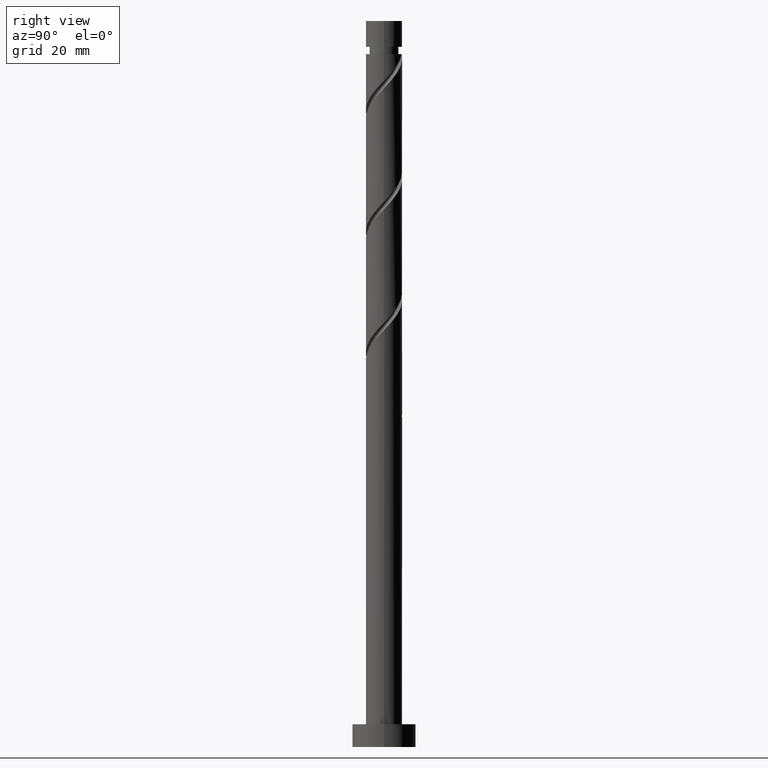
[diagram: clean part render]
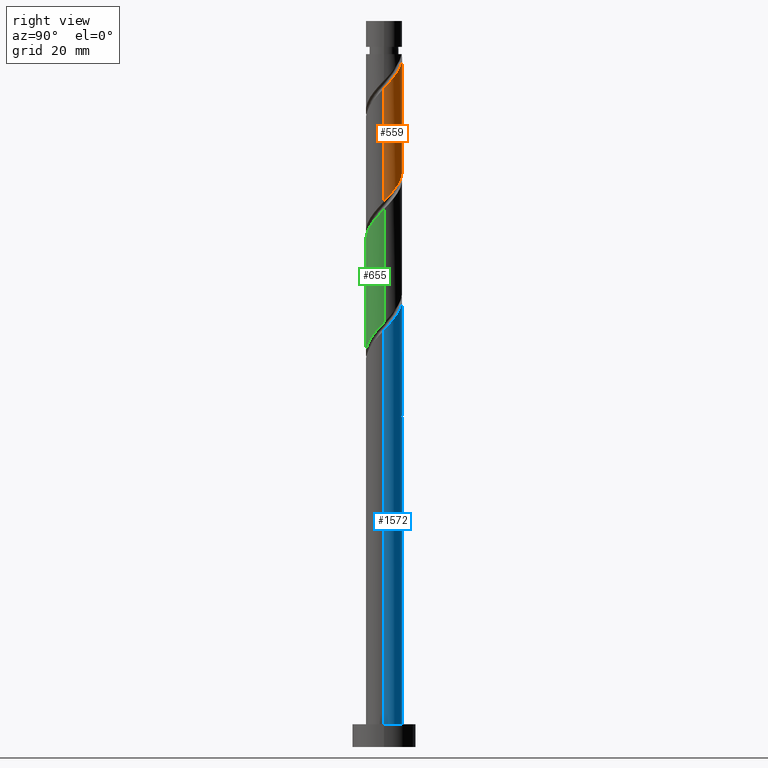
[diagram: same view with three faces highlighted in distinct colors, each labeled with its STEP entity id]
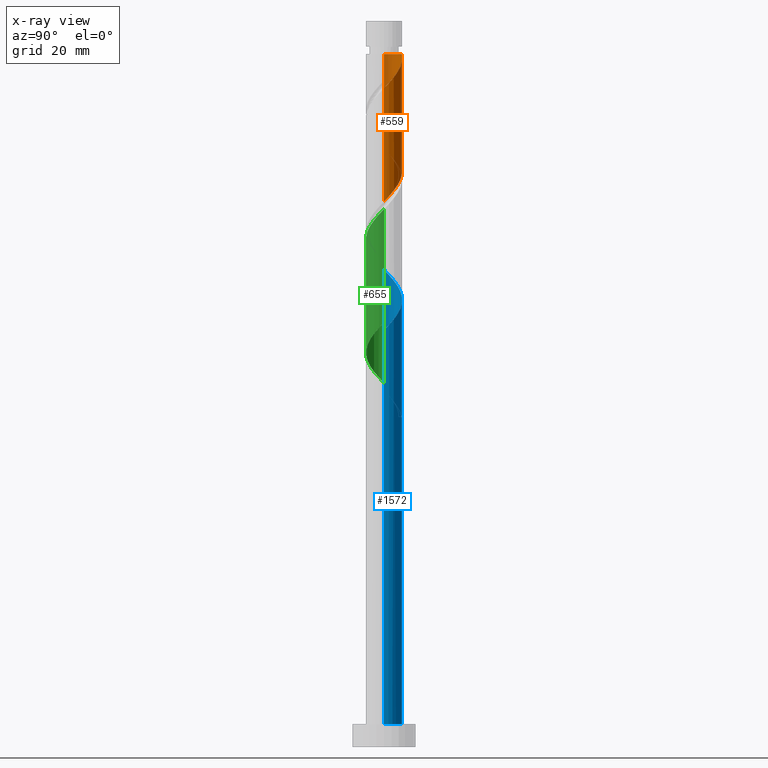
[diagram: x-ray of the same camera — body ghosted, the three highlighted faces saturated]
A machine part, right view with three faces highlighted in distinct colors.
The next image is the same camera in x-ray (body ghosted, the three faces saturated) — at least one of them is partly hidden behind the body in this view.
Their STEP definitions:

[orange] entity #559 — the highlighted cylindrical surface (edge-blend (fillet) strip) has radius 4 mm, axis along (-0, -0, -1).
#6 = VERTEX_POINT ( 'NONE', #1461 ) ;
#10 = CARTESIAN_POINT ( 'NONE',  ( 1.868138386609202950, 3.536956172823909839, 124.8291720253184280 ) ) ;
#25 = CARTESIAN_POINT ( 'NONE',  ( 3.201206812320807948, 2.466379960577145702, 123.0109902071366434 ) ) ;
#27 = ORIENTED_EDGE ( 'NONE', *, *, #380, .F. ) ;
#166 = CARTESIAN_POINT ( 'NONE',  ( 3.999999999999999112, -4.217823438386014002E-15, 120.2240810500738490 ) ) ;
#188 = AXIS2_PLACEMENT_3D ( 'NONE', #1106, #456, #1248 ) ;
#193 = CARTESIAN_POINT ( 'NONE',  ( 3.999999999999999112, -4.217823438386014002E-15, 120.2240810500738490 ) ) ;
#217 = LINE ( 'NONE', #853, #1034 ) ;
#244 = EDGE_LOOP ( 'NONE', ( #557, #1117, #1029, #27, #1439 ) ) ;
#275 = CARTESIAN_POINT ( 'NONE',  ( -4.000000000000000000, -2.183695822710489317E-15, 133.5574143834072345 ) ) ;
#327 = CARTESIAN_POINT ( 'NONE',  ( 3.766818871216639941, 1.345762085751509352, 146.6473538435003263 ) ) ;
#342 = CARTESIAN_POINT ( 'NONE',  ( -0.7959899496852961276, 3.920000000000009255, 152.7079599041063318 ) ) ;
#359 = CARTESIAN_POINT ( 'NONE',  ( -0.7959899496852961276, 3.920000000000009255, 152.7079599041063318 ) ) ;
#379 = CARTESIAN_POINT ( 'NONE',  ( -2.441275768804707536, 3.168623142730447650, 129.6776568738032722 ) ) ;
#380 = EDGE_CURVE ( 'NONE', #1197, #868, #217, .T. ) ;
#382 = DIRECTION ( 'NONE',  ( -1.000000000000000000, 0.000000000000000000, 0.000000000000000000 ) ) ;
#389 = CARTESIAN_POINT ( 'NONE',  ( 0.7959899496852969047, 3.919999999999999041, 126.0412932374396462 ) ) ;
#398 = CARTESIAN_POINT ( 'NONE',  ( -0.3406448590276052735, 3.985468740313748537, 127.2534144495608643 ) ) ;
#408 = CARTESIAN_POINT ( 'NONE',  ( 3.766394975944543422, 1.464590062224026212, 121.7988689950154253 ) ) ;
#411 = EDGE_CURVE ( 'NONE', #6, #429, #1443, .T. ) ;
#413 = DIRECTION ( 'NONE',  ( -0.000000000000000000, -0.000000000000000000, -1.000000000000000000 ) ) ;
#429 = VERTEX_POINT ( 'NONE', #193 ) ;
#443 =( BOUNDED_CURVE ( )  B_SPLINE_CURVE ( 2, ( #275, #508, #1280, #1053, #1416, #1013, #768, #1549, #379, #886, #1570, #1297, #398, #1163, #389, #903, #10, #1427, #778, #25, #914, #408, #791, #1311, #166 ),
 .UNSPECIFIED., .F., .T. ) 
 B_SPLINE_CURVE_WITH_KNOTS ( ( 3, 2, 2, 2, 2, 2, 2, 2, 2, 2, 2, 2, 3 ),
 ( 0.4295252162417512731, 0.4318181818181818232, 0.4431818181818181768, 0.4545454545454545303, 0.4659090909090908839, 0.4772727272727272929, 0.4886363636363636465, 0.5000000000000000000, 0.5113636363636363535, 0.5227272727272727071, 0.5340909090909090606, 0.5454545454545454142, 0.5545252162417513286 ),
 .UNSPECIFIED. ) 
 CURVE ( )  GEOMETRIC_REPRESENTATION_ITEM ( )  RATIONAL_B_SPLINE_CURVE ( ( 0.9061101570135550176, 0.9072237824201372369, 0.9090909090909147228, 0.8998376744372170721, 0.9090909090909147228, 0.8998376744372170721, 0.9090909090909147228, 0.8998376744372170721, 0.9090909090909147228, 0.8998376744372170721, 0.9090909090909147228, 0.8998376744372170721, 0.9090909090909147228, 0.8998376744372170721, 0.9090909090909147228, 0.8998376744372170721, 0.9090909090909147228, 0.8998376744372170721, 0.9090909090909147228, 0.8998376744372170721, 0.9090909090909147228, 0.8998376744372170721, 0.9090909090909147228, 0.9017048011079945580, 0.9061101570135550176 ) ) 
 REPRESENTATION_ITEM ( '' )  );
#456 = DIRECTION ( 'NONE',  ( -0.000000000000000000, -0.000000000000000000, -1.000000000000000000 ) ) ;
#460 = CARTESIAN_POINT ( 'NONE',  ( -4.000000000000000000, -2.183695822710489317E-15, 133.5574143834072345 ) ) ;
#470 = AXIS2_PLACEMENT_3D ( 'NONE', #1534, #1647, #382 ) ;
#475 = CARTESIAN_POINT ( 'NONE',  ( 2.896854998579490470, 2.817620677520441763, 148.4655356616821109 ) ) ;
#508 = CARTESIAN_POINT ( 'NONE',  ( -4.000000000000000000, 0.1151021060952860386, 133.4353163786889809 ) ) ;
#510 = CARTESIAN_POINT ( 'NONE',  ( 3.235091246491831107, 2.352484777181775399, 147.8594750556215160 ) ) ;
#523 = CIRCLE ( 'NONE', #470, 3.999999999999994227 ) ;
#557 = ORIENTED_EDGE ( 'NONE', *, *, #1466, .F. ) ;
#559 = ADVANCED_FACE ( 'NONE', ( #1641 ), #1097, .T. ) ;
#572 = CARTESIAN_POINT ( 'NONE',  ( 4.000000000000007105, 0.1151021060952970576, 145.3139367628570255 ) ) ;
#616 = VERTEX_POINT ( 'NONE', #342 ) ;
#695 = CARTESIAN_POINT ( 'NONE',  ( 4.000000000000007105, 2.049084436379005528E-15, 145.1918387581388004 ) ) ;
#739 = CARTESIAN_POINT ( 'NONE',  ( 1.449682647155075221, 3.728058505782534393, 150.2837174798639239 ) ) ;
#753 = CARTESIAN_POINT ( 'NONE',  ( 2.441275768804712420, 3.168623142730452980, 149.0715962677427058 ) ) ;
#756 = VECTOR ( 'NONE', #413, 1000.000000000000000 ) ;
#768 = CARTESIAN_POINT ( 'NONE',  ( -3.235091246491822226, 2.352484777181772735, 130.8897780859244619 ) ) ;
#778 = CARTESIAN_POINT ( 'NONE',  ( 2.788941361696811061, 2.867369191613931001, 123.6170508131972383 ) ) ;
#781 = CARTESIAN_POINT ( 'NONE',  ( -3.999999999999994227, 0.000000000000000000, 152.7079599041063318 ) ) ;
#791 = CARTESIAN_POINT ( 'NONE',  ( 3.896423597087599777, 0.9043689247530142250, 121.1928083889547736 ) ) ;
#853 = CARTESIAN_POINT ( 'NONE',  ( -4.000000000000000000, 0.000000000000000000, 160.0000000000000000 ) ) ;
#868 = VERTEX_POINT ( 'NONE', #460 ) ;
#886 = CARTESIAN_POINT ( 'NONE',  ( -1.985696539029934815, 3.519625607940454870, 129.0715962677426774 ) ) ;
#903 = CARTESIAN_POINT ( 'NONE',  ( 1.359600862145591949, 3.805553922997102489, 125.4352326313790229 ) ) ;
#905 =( BOUNDED_CURVE ( )  B_SPLINE_CURVE ( 2, ( #695, #572, #1096, #1615, #327, #1261, #510, #475, #753, #1377, #739, #1268, #1419, #1289, #359 ),
 .UNSPECIFIED., .F., .T. ) 
 B_SPLINE_CURVE_WITH_KNOTS ( ( 3, 2, 2, 2, 2, 2, 2, 3 ),
 ( 0.6795252162417515507, 0.6818181818181818787, 0.6931818181818180102, 0.7045454545454544748, 0.7159090909090906063, 0.7272727272727270709, 0.7386363636363633134, 0.7499999999999996669 ),
 .UNSPECIFIED. ) 
 CURVE ( )  GEOMETRIC_REPRESENTATION_ITEM ( )  RATIONAL_B_SPLINE_CURVE ( ( 0.9061101570135619010, 0.9072237824201440093, 0.9090909090909213841, 0.8998376744372237335, 0.9090909090909213841, 0.8998376744372237335, 0.9090909090909213841, 0.8998376744372237335, 0.9090909090909213841, 0.8998376744372237335, 0.9090909090909213841, 0.8998376744372237335, 0.9090909090909213841, 0.8998376744372239555, 0.9090909090909211621 ) ) 
 REPRESENTATION_ITEM ( '' )  );
#914 = CARTESIAN_POINT ( 'NONE',  ( 3.483800894132674575, 1.965485011400587734, 122.4049296010760060 ) ) ;
#1013 = CARTESIAN_POINT ( 'NONE',  ( -3.573327494404164195, 1.887348876843107259, 131.4958386919851137 ) ) ;
#1029 = ORIENTED_EDGE ( 'NONE', *, *, #1332, .F. ) ;
#1034 = VECTOR ( 'NONE', #1272, 1000.000000000000000 ) ;
#1053 = CARTESIAN_POINT ( 'NONE',  ( -3.960310248029101032, 0.8041752946599101115, 132.7079599041063318 ) ) ;
#1096 = CARTESIAN_POINT ( 'NONE',  ( 3.993381233129886798, 0.2300137536889525769, 145.4352326313790797 ) ) ;
#1097 = CYLINDRICAL_SURFACE ( 'NONE', #188, 4.000000000000000000 ) ;
#1106 = CARTESIAN_POINT ( 'NONE',  ( 0.000000000000000000, 0.000000000000000000, 160.0000000000000000 ) ) ;
#1117 = ORIENTED_EDGE ( 'NONE', *, *, #411, .T. ) ;
#1163 = CARTESIAN_POINT ( 'NONE',  ( 0.2323790372250005565, 4.034446077002895592, 126.6473538435002268 ) ) ;
#1185 = CARTESIAN_POINT ( 'NONE',  ( 4.000000000000000000, 4.898587196589412829E-16, 160.0000000000000000 ) ) ;
#1197 = VERTEX_POINT ( 'NONE', #781 ) ;
#1248 = DIRECTION ( 'NONE',  ( -1.000000000000000000, 0.000000000000000000, 0.000000000000000000 ) ) ;
#1261 = CARTESIAN_POINT ( 'NONE',  ( 3.573327494404172189, 1.887348876843108814, 147.2534144495608643 ) ) ;
#1268 = CARTESIAN_POINT ( 'NONE',  ( 0.9136687552802141843, 3.936491403624607255, 150.8897780859245188 ) ) ;
#1272 = DIRECTION ( 'NONE',  ( -0.000000000000000000, -0.000000000000000000, -1.000000000000000000 ) ) ;
#1280 = CARTESIAN_POINT ( 'NONE',  ( -3.993381233129878805, 0.2300137536889537704, 133.3140205101669551 ) ) ;
#1289 = CARTESIAN_POINT ( 'NONE',  ( -0.2323790372249828207, 4.034446077002901809, 152.1018992980457085 ) ) ;
#1297 = CARTESIAN_POINT ( 'NONE',  ( -0.9136687552802114087, 3.936491403624601038, 127.8594750556214734 ) ) ;
#1311 = CARTESIAN_POINT ( 'NONE',  ( 4.000000000000000000, 0.4581157095404882473, 120.7100410030451343 ) ) ;
#1332 = EDGE_CURVE ( 'NONE', #868, #429, #443, .T. ) ;
#1377 = CARTESIAN_POINT ( 'NONE',  ( 1.985696539029937258, 3.519625607940459755, 149.6776568738033006 ) ) ;
#1416 = CARTESIAN_POINT ( 'NONE',  ( -3.766818871216632392, 1.345762085751508463, 132.1018992980456801 ) ) ;
#1419 = CARTESIAN_POINT ( 'NONE',  ( 0.3406448590276069388, 3.985468740313756086, 151.4958386919851421 ) ) ;
#1427 = CARTESIAN_POINT ( 'NONE',  ( 2.376675911072815062, 3.268358422650717188, 124.2231114192578190 ) ) ;
#1439 = ORIENTED_EDGE ( 'NONE', *, *, #1515, .T. ) ;
#1443 = LINE ( 'NONE', #1185, #756 ) ;
#1461 = CARTESIAN_POINT ( 'NONE',  ( 4.000000000000007105, 2.049084436379005528E-15, 145.1918387581388004 ) ) ;
#1466 = EDGE_CURVE ( 'NONE', #6, #616, #905, .T. ) ;
#1515 = EDGE_CURVE ( 'NONE', #1197, #616, #523, .T. ) ;
#1534 = CARTESIAN_POINT ( 'NONE',  ( 0.000000000000000000, 0.000000000000000000, 152.7079599041063318 ) ) ;
#1549 = CARTESIAN_POINT ( 'NONE',  ( -2.896854998579482476, 2.817620677520439987, 130.2837174798638955 ) ) ;
#1570 = CARTESIAN_POINT ( 'NONE',  ( -1.449682647155072779, 3.728058505782527732, 128.4655356616820541 ) ) ;
#1615 = CARTESIAN_POINT ( 'NONE',  ( 3.960310248029109470, 0.8041752946599098895, 146.0412932374396462 ) ) ;
#1641 = FACE_OUTER_BOUND ( 'NONE', #244, .T. ) ;
#1647 = DIRECTION ( 'NONE',  ( -0.000000000000000000, -0.000000000000000000, -1.000000000000000000 ) ) ;

[blue] entity #1572 — the highlighted cylindrical surface (edge-blend (fillet) strip) has radius 4 mm, axis along (-0, -0, -1).
#22 = CARTESIAN_POINT ( 'NONE',  ( -3.483800894132680792, 1.965485011400591731, 76.34432354046998626 ) ) ;
#48 = CARTESIAN_POINT ( 'NONE',  ( -3.766394975944548751, 1.464590062224031763, 103.6170508131972383 ) ) ;
#56 = CARTESIAN_POINT ( 'NONE',  ( -4.000000000000000000, 0.000000000000000000, 160.0000000000000000 ) ) ;
#57 = CARTESIAN_POINT ( 'NONE',  ( -3.960310248029101032, 0.8041752946599101115, 79.37462657077296058 ) ) ;
#60 = CARTESIAN_POINT ( 'NONE',  ( 0.000000000000000000, 0.000000000000000000, 72.70795990410631759 ) ) ;
#66 = CARTESIAN_POINT ( 'NONE',  ( 4.000000000000000000, 4.898587196589412829E-16, 5.000000000000000000 ) ) ;
#68 = CARTESIAN_POINT ( 'NONE',  ( -1.449682647155072779, 3.728058505782527732, 75.13220232834875389 ) ) ;
#96 = CARTESIAN_POINT ( 'NONE',  ( 4.000000000000007105, 2.049084436379005528E-15, 91.85850542480544334 ) ) ;
#104 = EDGE_CURVE ( 'NONE', #637, #936, #1499, .T. ) ;
#105 = CARTESIAN_POINT ( 'NONE',  ( 0.000000000000000000, 0.000000000000000000, 5.000000000000000000 ) ) ;
#159 = AXIS2_PLACEMENT_3D ( 'NONE', #994, #257, #1016 ) ;
#202 = ORIENTED_EDGE ( 'NONE', *, *, #704, .T. ) ;
#212 = EDGE_CURVE ( 'NONE', #637, #736, #671, .T. ) ;
#221 = CARTESIAN_POINT ( 'NONE',  ( -4.000000000000000000, 0.000000000000000000, 5.000000000000000000 ) ) ;
#223 = LINE ( 'NONE', #1121, #1359 ) ;
#224 = CARTESIAN_POINT ( 'NONE',  ( -4.000000000000007105, -2.228566284820962220E-15, 78.52517209147210053 ) ) ;
#233 = CARTESIAN_POINT ( 'NONE',  ( -4.000000000000007105, -2.228566284820962220E-15, 78.52517209147210053 ) ) ;
#257 = DIRECTION ( 'NONE',  ( -0.000000000000000000, -0.000000000000000000, -1.000000000000000000 ) ) ;
#270 = CARTESIAN_POINT ( 'NONE',  ( -1.359600862145592837, 3.805553922997109595, 99.98068717683358386 ) ) ;
#284 = ORIENTED_EDGE ( 'NONE', *, *, #212, .F. ) ;
#329 = CARTESIAN_POINT ( 'NONE',  ( 3.766818871216639941, 1.345762085751509352, 93.31402051016695509 ) ) ;
#337 =( BOUNDED_CURVE ( )  B_SPLINE_CURVE ( 2, ( #1600, #1206, #1318, #57, #1337, #1087, #1069, #1593, #1486, #424, #68, #929, #440, #945, #1229 ),
 .UNSPECIFIED., .F., .T. ) 
 B_SPLINE_CURVE_WITH_KNOTS ( ( 3, 2, 2, 2, 2, 2, 2, 3 ),
 ( 0.9295252162417513286, 0.9318181818181817677, 0.9431818181818182323, 0.9545454545454545858, 0.9659090909090909394, 0.9772727272727272929, 0.9886363636363636465, 1.000000000000000000 ),
 .UNSPECIFIED. ) 
 CURVE ( )  GEOMETRIC_REPRESENTATION_ITEM ( )  RATIONAL_B_SPLINE_CURVE ( ( 0.9061101570135550176, 0.9072237824201372369, 0.9090909090909147228, 0.8998376744372170721, 0.9090909090909147228, 0.8998376744372170721, 0.9090909090909147228, 0.8998376744372170721, 0.9090909090909147228, 0.8998376744372170721, 0.9090909090909147228, 0.8998376744372170721, 0.9090909090909147228, 0.8998376744372170721, 0.9090909090909147228 ) ) 
 REPRESENTATION_ITEM ( '' )  );
#388 = AXIS2_PLACEMENT_3D ( 'NONE', #105, #1382, #1545 ) ;
#392 = ORIENTED_EDGE ( 'NONE', *, *, #1207, .F. ) ;
#417 = AXIS2_PLACEMENT_3D ( 'NONE', #60, #788, #1309 ) ;
#419 = VECTOR ( 'NONE', #1356, 1000.000000000000000 ) ;
#424 = CARTESIAN_POINT ( 'NONE',  ( -1.985696539029934815, 3.519625607940454870, 75.73826293440936297 ) ) ;
#438 = CARTESIAN_POINT ( 'NONE',  ( -4.000000000000007105, -2.228566284820962220E-15, 105.1918387581387719 ) ) ;
#440 = CARTESIAN_POINT ( 'NONE',  ( -0.3406448590276052735, 3.985468740313748537, 73.92008111622752153 ) ) ;
#462 = DIRECTION ( 'NONE',  ( -0.000000000000000000, -0.000000000000000000, -1.000000000000000000 ) ) ;
#485 = FACE_OUTER_BOUND ( 'NONE', #770, .T. ) ;
#538 = LINE ( 'NONE', #56, #1233 ) ;
#582 = EDGE_CURVE ( 'NONE', #707, #1173, #223, .T. ) ;
#594 = CARTESIAN_POINT ( 'NONE',  ( 3.235091246491831107, 2.352484777181775399, 94.52614172228815903 ) ) ;
#606 = CARTESIAN_POINT ( 'NONE',  ( -4.000000000000007105, -2.228566284820962220E-15, 105.1918387581387719 ) ) ;
#612 = CARTESIAN_POINT ( 'NONE',  ( 2.441275768804712420, 3.168623142730452980, 95.73826293440937718 ) ) ;
#637 = VERTEX_POINT ( 'NONE', #832 ) ;
#671 =( BOUNDED_CURVE ( )  B_SPLINE_CURVE ( 2, ( #1454, #1192, #814, #900, #1434, #774, #22, #1050, #1240, #1348, #224 ),
 .UNSPECIFIED., .F., .T. ) 
 B_SPLINE_CURVE_WITH_KNOTS ( ( 3, 2, 2, 2, 2, 3 ),
 ( 0.000000000000000000, 0.01136363636363635354, 0.02272727272727270709, 0.03409090909090906063, 0.04545454545454541417, 0.05452521624175133558 ),
 .UNSPECIFIED. ) 
 CURVE ( )  GEOMETRIC_REPRESENTATION_ITEM ( )  RATIONAL_B_SPLINE_CURVE ( ( 0.9090909090909213841, 0.8998376744372237335, 0.9090909090909213841, 0.8998376744372237335, 0.9090909090909213841, 0.8998376744372237335, 0.9090909090909213841, 0.8998376744372237335, 0.9090909090909213841, 0.9017048011080011083, 0.9061101570135616790 ) ) 
 REPRESENTATION_ITEM ( '' )  );
#675 = CARTESIAN_POINT ( 'NONE',  ( -3.201206812320814166, 2.466379960577149699, 102.4049296010760344 ) ) ;
#704 = EDGE_CURVE ( 'NONE', #1173, #931, #1259, .T. ) ;
#707 = VERTEX_POINT ( 'NONE', #1009 ) ;
#729 = CYLINDRICAL_SURFACE ( 'NONE', #159, 4.000000000000000000 ) ;
#733 = CARTESIAN_POINT ( 'NONE',  ( 3.573327494404172189, 1.887348876843108814, 93.92008111622754996 ) ) ;
#736 = VERTEX_POINT ( 'NONE', #233 ) ;
#770 = EDGE_LOOP ( 'NONE', ( #898, #1422, #202, #392, #284, #1238, #940, #1306 ) ) ;
#774 = CARTESIAN_POINT ( 'NONE',  ( -3.201206812320814166, 2.466379960577149699, 75.73826293440936297 ) ) ;
#788 = DIRECTION ( 'NONE',  ( 0.000000000000000000, -0.000000000000000000, -1.000000000000000000 ) ) ;
#802 = CARTESIAN_POINT ( 'NONE',  ( -2.788941361696815946, 2.867369191613937218, 101.7988689950154111 ) ) ;
#814 = CARTESIAN_POINT ( 'NONE',  ( -1.868138386609206059, 3.536956172823916056, 73.92008111622753574 ) ) ;
#830 = CARTESIAN_POINT ( 'NONE',  ( 1.449682647155075221, 3.728058505782534393, 96.95038414653060954 ) ) ;
#831 = EDGE_CURVE ( 'NONE', #1613, #1632, #538, .T. ) ;
#832 = CARTESIAN_POINT ( 'NONE',  ( -0.7959899496852957945, 3.920000000000007034, 72.70795990410631759 ) ) ;
#837 = LINE ( 'NONE', #1247, #419 ) ;
#877 = CARTESIAN_POINT ( 'NONE',  ( 0.9136687552802141843, 3.936491403624607255, 97.55644475259119019 ) ) ;
#898 = ORIENTED_EDGE ( 'NONE', *, *, #1188, .F. ) ;
#900 = CARTESIAN_POINT ( 'NONE',  ( -2.376675911072818170, 3.268358422650722961, 74.52614172228813061 ) ) ;
#929 = CARTESIAN_POINT ( 'NONE',  ( -0.9136687552802114087, 3.936491403624601038, 74.52614172228813061 ) ) ;
#931 = VERTEX_POINT ( 'NONE', #221 ) ;
#936 = VERTEX_POINT ( 'NONE', #1614 ) ;
#940 = ORIENTED_EDGE ( 'NONE', *, *, #1441, .F. ) ;
#945 = CARTESIAN_POINT ( 'NONE',  ( 0.2323790372250005565, 4.034446077002895592, 73.31402051016689825 ) ) ;
#956 = CARTESIAN_POINT ( 'NONE',  ( 1.985696539029937258, 3.519625607940459755, 96.34432354046997204 ) ) ;
#980 = CARTESIAN_POINT ( 'NONE',  ( 2.896854998579490470, 2.817620677520441763, 95.13220232834876811 ) ) ;
#994 = CARTESIAN_POINT ( 'NONE',  ( 0.000000000000000000, 0.000000000000000000, 160.0000000000000000 ) ) ;
#1009 = CARTESIAN_POINT ( 'NONE',  ( 4.000000000000007105, 2.049084436379005528E-15, 91.85850542480544334 ) ) ;
#1016 = DIRECTION ( 'NONE',  ( -1.000000000000000000, 0.000000000000000000, 0.000000000000000000 ) ) ;
#1019 = CARTESIAN_POINT ( 'NONE',  ( -0.2323790372249996961, 4.034446077002902697, 98.76856596471239413 ) ) ;
#1050 = CARTESIAN_POINT ( 'NONE',  ( -3.766394975944548751, 1.464590062224031763, 76.95038414653058112 ) ) ;
#1069 = CARTESIAN_POINT ( 'NONE',  ( -3.235091246491822226, 2.352484777181772735, 77.55644475259116177 ) ) ;
#1087 = CARTESIAN_POINT ( 'NONE',  ( -3.573327494404164195, 1.887348876843107259, 78.16250535865179927 ) ) ;
#1121 = CARTESIAN_POINT ( 'NONE',  ( 4.000000000000000000, 4.898587196589412829E-16, 160.0000000000000000 ) ) ;
#1133 = CARTESIAN_POINT ( 'NONE',  ( -4.000000000000000000, 3.395198299693706155E-15, 80.22408105007387746 ) ) ;
#1173 = VERTEX_POINT ( 'NONE', #66 ) ;
#1188 = EDGE_CURVE ( 'NONE', #707, #1613, #1552, .T. ) ;
#1192 = CARTESIAN_POINT ( 'NONE',  ( -1.359600862145592837, 3.805553922997109595, 73.31402051016692667 ) ) ;
#1198 = CARTESIAN_POINT ( 'NONE',  ( -3.483800894132680792, 1.965485011400591731, 103.0109902071366292 ) ) ;
#1206 = CARTESIAN_POINT ( 'NONE',  ( -4.000000000000000000, 0.1151021060952916175, 80.10198304535566649 ) ) ;
#1207 = EDGE_CURVE ( 'NONE', #736, #931, #837, .T. ) ;
#1229 = CARTESIAN_POINT ( 'NONE',  ( 0.7959899496852971268, 3.919999999999999041, 72.70795990410633181 ) ) ;
#1233 = VECTOR ( 'NONE', #1317, 1000.000000000000000 ) ;
#1238 = ORIENTED_EDGE ( 'NONE', *, *, #104, .T. ) ;
#1240 = CARTESIAN_POINT ( 'NONE',  ( -3.896423597087605550, 0.9043689247530184439, 77.55644475259119019 ) ) ;
#1247 = CARTESIAN_POINT ( 'NONE',  ( -4.000000000000000000, 0.000000000000000000, 160.0000000000000000 ) ) ;
#1259 = CIRCLE ( 'NONE', #388, 4.000000000000000000 ) ;
#1284 = CARTESIAN_POINT ( 'NONE',  ( 0.3406448590276069388, 3.985468740313756086, 98.16250535865177085 ) ) ;
#1291 = CARTESIAN_POINT ( 'NONE',  ( -2.376675911072818170, 3.268358422650722961, 101.1928083889547878 ) ) ;
#1300 = CARTESIAN_POINT ( 'NONE',  ( -1.868138386609206059, 3.536956172823916056, 100.5867477828942071 ) ) ;
#1306 = ORIENTED_EDGE ( 'NONE', *, *, #831, .F. ) ;
#1309 = DIRECTION ( 'NONE',  ( -1.000000000000000000, 0.000000000000000000, 0.000000000000000000 ) ) ;
#1317 = DIRECTION ( 'NONE',  ( -0.000000000000000000, -0.000000000000000000, -1.000000000000000000 ) ) ;
#1318 = CARTESIAN_POINT ( 'NONE',  ( -3.993381233129878805, 0.2300137536889537704, 79.98068717683359807 ) ) ;
#1337 = CARTESIAN_POINT ( 'NONE',  ( -3.766818871216632392, 1.345762085751508463, 78.76856596471236571 ) ) ;
#1347 = CARTESIAN_POINT ( 'NONE',  ( 4.000000000000006217, 0.1151021060952931163, 91.98060342952366852 ) ) ;
#1348 = CARTESIAN_POINT ( 'NONE',  ( -4.000000000000007105, 0.4581157095404909119, 78.03921213850080107 ) ) ;
#1356 = DIRECTION ( 'NONE',  ( -0.000000000000000000, -0.000000000000000000, -1.000000000000000000 ) ) ;
#1357 = CARTESIAN_POINT ( 'NONE',  ( 3.993381233129886798, 0.2300137536889525769, 92.10189929804572273 ) ) ;
#1359 = VECTOR ( 'NONE', #462, 1000.000000000000000 ) ;
#1382 = DIRECTION ( 'NONE',  ( 0.000000000000000000, 0.000000000000000000, 1.000000000000000000 ) ) ;
#1422 = ORIENTED_EDGE ( 'NONE', *, *, #582, .T. ) ;
#1434 = CARTESIAN_POINT ( 'NONE',  ( -2.788941361696815946, 2.867369191613937218, 75.13220232834875389 ) ) ;
#1441 = EDGE_CURVE ( 'NONE', #1632, #936, #337, .T. ) ;
#1454 = CARTESIAN_POINT ( 'NONE',  ( -0.7959899496852957945, 3.920000000000007034, 72.70795990410631759 ) ) ;
#1468 = CARTESIAN_POINT ( 'NONE',  ( -3.896423597087605550, 0.9043689247530184439, 104.2231114192578190 ) ) ;
#1486 = CARTESIAN_POINT ( 'NONE',  ( -2.441275768804707536, 3.168623142730447650, 76.34432354046994362 ) ) ;
#1499 = CIRCLE ( 'NONE', #417, 4.000000000000000000 ) ;
#1520 = CARTESIAN_POINT ( 'NONE',  ( 3.960310248029109470, 0.8041752946599098895, 92.70795990410630338 ) ) ;
#1545 = DIRECTION ( 'NONE',  ( 1.000000000000000000, 0.000000000000000000, 0.000000000000000000 ) ) ;
#1552 =( BOUNDED_CURVE ( )  B_SPLINE_CURVE ( 2, ( #96, #1347, #1357, #1520, #329, #733, #594, #980, #612, #956, #830, #877, #1284, #1019, #1554, #270, #1300, #1291, #802, #675, #1198, #48, #1468, #1605, #438 ),
 .UNSPECIFIED., .F., .T. ) 
 B_SPLINE_CURVE_WITH_KNOTS ( ( 3, 2, 2, 2, 2, 2, 2, 2, 2, 2, 2, 2, 3 ),
 ( 0.1795252162417513841, 0.1818181818181817677, 0.1931818181818182323, 0.2045454545454545858, 0.2159090909090909394, 0.2272727272727272929, 0.2386363636363636465, 0.2500000000000000000, 0.2613636363636363535, 0.2727272727272727071, 0.2840909090909090606, 0.2954545454545454142, 0.3045252162417514952 ),
 .UNSPECIFIED. ) 
 CURVE ( )  GEOMETRIC_REPRESENTATION_ITEM ( )  RATIONAL_B_SPLINE_CURVE ( ( 0.9061101570135619010, 0.9072237824201440093, 0.9090909090909213841, 0.8998376744372237335, 0.9090909090909213841, 0.8998376744372237335, 0.9090909090909213841, 0.8998376744372237335, 0.9090909090909213841, 0.8998376744372237335, 0.9090909090909213841, 0.8998376744372237335, 0.9090909090909213841, 0.8998376744372237335, 0.9090909090909213841, 0.8998376744372237335, 0.9090909090909213841, 0.8998376744372237335, 0.9090909090909213841, 0.8998376744372237335, 0.9090909090909213841, 0.8998376744372237335, 0.9090909090909213841, 0.9017048011080009973, 0.9061101570135619010 ) ) 
 REPRESENTATION_ITEM ( '' )  );
#1554 = CARTESIAN_POINT ( 'NONE',  ( -0.7959899496852959055, 3.920000000000007034, 99.37462657077301742 ) ) ;
#1572 = ADVANCED_FACE ( 'NONE', ( #485 ), #729, .T. ) ;
#1593 = CARTESIAN_POINT ( 'NONE',  ( -2.896854998579482476, 2.817620677520439987, 76.95038414653053849 ) ) ;
#1600 = CARTESIAN_POINT ( 'NONE',  ( -4.000000000000000000, 3.395198299693706155E-15, 80.22408105007387746 ) ) ;
#1605 = CARTESIAN_POINT ( 'NONE',  ( -4.000000000000008882, 0.4581157095404833623, 104.7058788051674867 ) ) ;
#1613 = VERTEX_POINT ( 'NONE', #606 ) ;
#1614 = CARTESIAN_POINT ( 'NONE',  ( 0.7959899496852971268, 3.919999999999999041, 72.70795990410631759 ) ) ;
#1632 = VERTEX_POINT ( 'NONE', #1133 ) ;

[green] entity #655 — the highlighted cylindrical surface (edge-blend (fillet) strip) has radius 4 mm, axis along (-0, -0, -1).
#56 = CARTESIAN_POINT ( 'NONE',  ( -4.000000000000000000, 0.000000000000000000, 160.0000000000000000 ) ) ;
#69 = CARTESIAN_POINT ( 'NONE',  ( 0.3406448590276041077, -3.985468740313749425, 87.25341444956085013 ) ) ;
#70 = CARTESIAN_POINT ( 'NONE',  ( 0.000000000000000000, 0.000000000000000000, 160.0000000000000000 ) ) ;
#76 = CARTESIAN_POINT ( 'NONE',  ( -4.000000000000000000, -0.4581157095404896351, 80.71004100304517692 ) ) ;
#82 = DIRECTION ( 'NONE',  ( -0.000000000000000000, -0.000000000000000000, -1.000000000000000000 ) ) ;
#87 = CARTESIAN_POINT ( 'NONE',  ( -3.993381233129886798, -0.2300137536889529932, 105.4352326313790513 ) ) ;
#88 = CARTESIAN_POINT ( 'NONE',  ( 3.999999999999999112, -0.1151021060952867464, 93.43531637868896667 ) ) ;
#95 = CARTESIAN_POINT ( 'NONE',  ( 3.573327494404164195, -1.887348876843107037, 91.49583869198509944 ) ) ;
#110 =( BOUNDED_CURVE ( )  B_SPLINE_CURVE ( 2, ( #1622, #1483, #87, #708, #1094, #468, #963, #826, #1216, #455, #583, #571, #1627, #320, #722, #1086, #1497, #1344, #340, #439, #944, #203, #843, #214, #1246 ),
 .UNSPECIFIED., .F., .T. ) 
 B_SPLINE_CURVE_WITH_KNOTS ( ( 3, 2, 2, 2, 2, 2, 2, 2, 2, 2, 2, 2, 3 ),
 ( 0.3045252162417514952, 0.3068181818181817677, 0.3181818181818182323, 0.3295454545454545858, 0.3409090909090909394, 0.3522727272727272929, 0.3636363636363636465, 0.3750000000000000000, 0.3863636363636363535, 0.3977272727272727071, 0.4090909090909090606, 0.4204545454545454142, 0.4295252162417513841 ),
 .UNSPECIFIED. ) 
 CURVE ( )  GEOMETRIC_REPRESENTATION_ITEM ( )  RATIONAL_B_SPLINE_CURVE ( ( 0.9061101570135619010, 0.9072237824201441203, 0.9090909090909213841, 0.8998376744372237335, 0.9090909090909213841, 0.8998376744372237335, 0.9090909090909213841, 0.8998376744372237335, 0.9090909090909213841, 0.8998376744372237335, 0.9090909090909213841, 0.8998376744372237335, 0.9090909090909213841, 0.8998376744372237335, 0.9090909090909213841, 0.8998376744372237335, 0.9090909090909213841, 0.8998376744372237335, 0.9090909090909213841, 0.8998376744372237335, 0.9090909090909213841, 0.8998376744372237335, 0.9090909090909213841, 0.9017048011080011083, 0.9061101570135619010 ) ) 
 REPRESENTATION_ITEM ( '' )  );
#163 = ORIENTED_EDGE ( 'NONE', *, *, #1312, .F. ) ;
#197 = CARTESIAN_POINT ( 'NONE',  ( 1.449682647155072779, -3.728058505782527732, 88.46553566168208249 ) ) ;
#203 = CARTESIAN_POINT ( 'NONE',  ( 3.766394975944549639, -1.464590062224030875, 116.9503841465305527 ) ) ;
#214 = CARTESIAN_POINT ( 'NONE',  ( 4.000000000000007994, -0.4581157095404886359, 118.0392121385008011 ) ) ;
#279 =( BOUNDED_CURVE ( )  B_SPLINE_CURVE ( 2, ( #335, #88, #1640, #1498, #990, #95, #450, #716, #709, #1114, #197, #1509, #69, #1119, #573, #1239, #471, #328, #829, #1537, #317, #1214, #1226, #76, #524 ),
 .UNSPECIFIED., .F., .T. ) 
 B_SPLINE_CURVE_WITH_KNOTS ( ( 3, 2, 2, 2, 2, 2, 2, 2, 2, 2, 2, 2, 3 ),
 ( 0.8045252162417512176, 0.8068181818181817677, 0.8181818181818182323, 0.8295454545454545858, 0.8409090909090909394, 0.8522727272727272929, 0.8636363636363636465, 0.8750000000000000000, 0.8863636363636363535, 0.8977272727272727071, 0.9090909090909090606, 0.9204545454545454142, 0.9295252162417513286 ),
 .UNSPECIFIED. ) 
 CURVE ( )  GEOMETRIC_REPRESENTATION_ITEM ( )  RATIONAL_B_SPLINE_CURVE ( ( 0.9061101570135550176, 0.9072237824201372369, 0.9090909090909147228, 0.8998376744372170721, 0.9090909090909147228, 0.8998376744372170721, 0.9090909090909147228, 0.8998376744372170721, 0.9090909090909147228, 0.8998376744372170721, 0.9090909090909147228, 0.8998376744372170721, 0.9090909090909147228, 0.8998376744372170721, 0.9090909090909147228, 0.8998376744372170721, 0.9090909090909147228, 0.8998376744372170721, 0.9090909090909147228, 0.8998376744372170721, 0.9090909090909147228, 0.8998376744372170721, 0.9090909090909147228, 0.9017048011079945580, 0.9061101570135550176 ) ) 
 REPRESENTATION_ITEM ( '' )  );
#317 = CARTESIAN_POINT ( 'NONE',  ( -3.483800894132674575, -1.965485011400587068, 82.40492960107600595 ) ) ;
#320 = CARTESIAN_POINT ( 'NONE',  ( 0.2323790372250002512, -4.034446077002902697, 112.1018992980457227 ) ) ;
#328 = CARTESIAN_POINT ( 'NONE',  ( -2.376675911072815062, -3.268358422650717188, 84.22311141925783318 ) ) ;
#335 = CARTESIAN_POINT ( 'NONE',  ( 3.999999999999999112, -4.217823438386014002E-15, 93.55741438340722027 ) ) ;
#340 = CARTESIAN_POINT ( 'NONE',  ( 2.788941361696815946, -2.867369191613937218, 115.1322023283487681 ) ) ;
#439 = CARTESIAN_POINT ( 'NONE',  ( 3.201206812320813277, -2.466379960577150143, 115.7382629344093488 ) ) ;
#444 = AXIS2_PLACEMENT_3D ( 'NONE', #70, #82, #595 ) ;
#450 = CARTESIAN_POINT ( 'NONE',  ( 3.235091246491822670, -2.352484777181772735, 90.88977808592449037 ) ) ;
#455 = CARTESIAN_POINT ( 'NONE',  ( -1.985696539029939034, -3.519625607940459755, 109.6776568738032864 ) ) ;
#468 = CARTESIAN_POINT ( 'NONE',  ( -3.573327494404170857, -1.887348876843109924, 107.2534144495608786 ) ) ;
#471 = CARTESIAN_POINT ( 'NONE',  ( -1.868138386609202728, -3.536956172823909839, 84.82917202531845646 ) ) ;
#492 = CARTESIAN_POINT ( 'NONE',  ( 3.999999999999999112, -4.217823438386014002E-15, 93.55741438340722027 ) ) ;
#524 = CARTESIAN_POINT ( 'NONE',  ( -4.000000000000000000, 3.395198299693706155E-15, 80.22408105007387746 ) ) ;
#538 = LINE ( 'NONE', #56, #1233 ) ;
#571 = CARTESIAN_POINT ( 'NONE',  ( -0.9136687552802136292, -3.936491403624607255, 110.8897780859245188 ) ) ;
#573 = CARTESIAN_POINT ( 'NONE',  ( -0.7959899496852964607, -3.919999999999999041, 86.04129323743967461 ) ) ;
#583 = CARTESIAN_POINT ( 'NONE',  ( -1.449682647155076332, -3.728058505782533949, 110.2837174798639239 ) ) ;
#595 = DIRECTION ( 'NONE',  ( -1.000000000000000000, 0.000000000000000000, 0.000000000000000000 ) ) ;
#606 = CARTESIAN_POINT ( 'NONE',  ( -4.000000000000007105, -2.228566284820962220E-15, 105.1918387581387719 ) ) ;
#655 = ADVANCED_FACE ( 'NONE', ( #1338 ), #696, .T. ) ;
#657 = LINE ( 'NONE', #1583, #1450 ) ;
#696 = CYLINDRICAL_SURFACE ( 'NONE', #444, 4.000000000000000000 ) ;
#708 = CARTESIAN_POINT ( 'NONE',  ( -3.960310248029109470, -0.8041752946599105556, 106.0412932374396888 ) ) ;
#709 = CARTESIAN_POINT ( 'NONE',  ( 2.441275768804707536, -3.168623142730448095, 89.67765687380328643 ) ) ;
#716 = CARTESIAN_POINT ( 'NONE',  ( 2.896854998579483809, -2.817620677520438655, 90.28371747986389551 ) ) ;
#722 = CARTESIAN_POINT ( 'NONE',  ( 0.7959899496852963496, -3.920000000000007034, 112.7079599041063460 ) ) ;
#800 = EDGE_CURVE ( 'NONE', #917, #1590, #657, .T. ) ;
#819 = CARTESIAN_POINT ( 'NONE',  ( 4.000000000000007105, 2.049084436379005528E-15, 118.5251720914721147 ) ) ;
#826 = CARTESIAN_POINT ( 'NONE',  ( -2.896854998579488694, -2.817620677520443540, 108.4655356616820825 ) ) ;
#829 = CARTESIAN_POINT ( 'NONE',  ( -2.788941361696811949, -2.867369191613930557, 83.61705081319720989 ) ) ;
#831 = EDGE_CURVE ( 'NONE', #1613, #1632, #538, .T. ) ;
#843 = CARTESIAN_POINT ( 'NONE',  ( 3.896423597087606883, -0.9043689247530181108, 117.5564447525911760 ) ) ;
#917 = VERTEX_POINT ( 'NONE', #819 ) ;
#934 = EDGE_CURVE ( 'NONE', #1613, #917, #110, .T. ) ;
#944 = CARTESIAN_POINT ( 'NONE',  ( 3.483800894132680792, -1.965485011400592397, 116.3443235404699863 ) ) ;
#963 = CARTESIAN_POINT ( 'NONE',  ( -3.235091246491830219, -2.352484777181776288, 107.8594750556214734 ) ) ;
#990 = CARTESIAN_POINT ( 'NONE',  ( 3.766818871216631948, -1.345762085751508685, 92.10189929804569431 ) ) ;
#1033 = ORIENTED_EDGE ( 'NONE', *, *, #800, .F. ) ;
#1065 = ORIENTED_EDGE ( 'NONE', *, *, #934, .F. ) ;
#1067 = DIRECTION ( 'NONE',  ( -0.000000000000000000, -0.000000000000000000, -1.000000000000000000 ) ) ;
#1078 = ORIENTED_EDGE ( 'NONE', *, *, #831, .T. ) ;
#1086 = CARTESIAN_POINT ( 'NONE',  ( 1.359600862145592615, -3.805553922997110483, 113.3140205101669267 ) ) ;
#1094 = CARTESIAN_POINT ( 'NONE',  ( -3.766818871216639941, -1.345762085751509796, 106.6473538435002837 ) ) ;
#1114 = CARTESIAN_POINT ( 'NONE',  ( 1.985696539029933927, -3.519625607940455314, 89.07159626774269157 ) ) ;
#1119 = CARTESIAN_POINT ( 'NONE',  ( -0.2323790372250016945, -4.034446077002896480, 86.64735384350025527 ) ) ;
#1133 = CARTESIAN_POINT ( 'NONE',  ( -4.000000000000000000, 3.395198299693706155E-15, 80.22408105007387746 ) ) ;
#1214 = CARTESIAN_POINT ( 'NONE',  ( -3.766394975944542534, -1.464590062224028433, 81.79886899501541109 ) ) ;
#1216 = CARTESIAN_POINT ( 'NONE',  ( -2.441275768804713309, -3.168623142730452091, 109.0715962677426916 ) ) ;
#1226 = CARTESIAN_POINT ( 'NONE',  ( -3.896423597087599777, -0.9043689247530154462, 81.19280838895478780 ) ) ;
#1233 = VECTOR ( 'NONE', #1317, 1000.000000000000000 ) ;
#1239 = CARTESIAN_POINT ( 'NONE',  ( -1.359600862145591504, -3.805553922997102934, 85.43523263137905133 ) ) ;
#1246 = CARTESIAN_POINT ( 'NONE',  ( 4.000000000000007105, 2.049084436379005528E-15, 118.5251720914721005 ) ) ;
#1312 = EDGE_CURVE ( 'NONE', #1590, #1632, #279, .T. ) ;
#1317 = DIRECTION ( 'NONE',  ( -0.000000000000000000, -0.000000000000000000, -1.000000000000000000 ) ) ;
#1338 = FACE_OUTER_BOUND ( 'NONE', #1410, .T. ) ;
#1344 = CARTESIAN_POINT ( 'NONE',  ( 2.376675911072818614, -3.268358422650722517, 114.5261417222881448 ) ) ;
#1410 = EDGE_LOOP ( 'NONE', ( #1033, #1065, #1078, #163 ) ) ;
#1450 = VECTOR ( 'NONE', #1067, 1000.000000000000000 ) ;
#1483 = CARTESIAN_POINT ( 'NONE',  ( -4.000000000000006217, -0.1151021060952989866, 105.3139367628569971 ) ) ;
#1497 = CARTESIAN_POINT ( 'NONE',  ( 1.868138386609204726, -3.536956172823916944, 113.9200811162275357 ) ) ;
#1498 = CARTESIAN_POINT ( 'NONE',  ( 3.960310248029101032, -0.8041752946599105556, 92.70795990410630338 ) ) ;
#1509 = CARTESIAN_POINT ( 'NONE',  ( 0.9136687552802119638, -3.936491403624601038, 87.85947505562150184 ) ) ;
#1537 = CARTESIAN_POINT ( 'NONE',  ( -3.201206812320809281, -2.466379960577144814, 83.01099020713660082 ) ) ;
#1583 = CARTESIAN_POINT ( 'NONE',  ( 4.000000000000000000, 4.898587196589412829E-16, 160.0000000000000000 ) ) ;
#1590 = VERTEX_POINT ( 'NONE', #492 ) ;
#1613 = VERTEX_POINT ( 'NONE', #606 ) ;
#1622 = CARTESIAN_POINT ( 'NONE',  ( -4.000000000000007105, -2.228566284820962220E-15, 105.1918387581387719 ) ) ;
#1627 = CARTESIAN_POINT ( 'NONE',  ( -0.3406448590276067168, -3.985468740313755642, 111.4958386919850994 ) ) ;
#1632 = VERTEX_POINT ( 'NONE', #1133 ) ;
#1640 = CARTESIAN_POINT ( 'NONE',  ( 3.993381233129877916, -0.2300137536889543255, 93.31402051016692667 ) ) ;